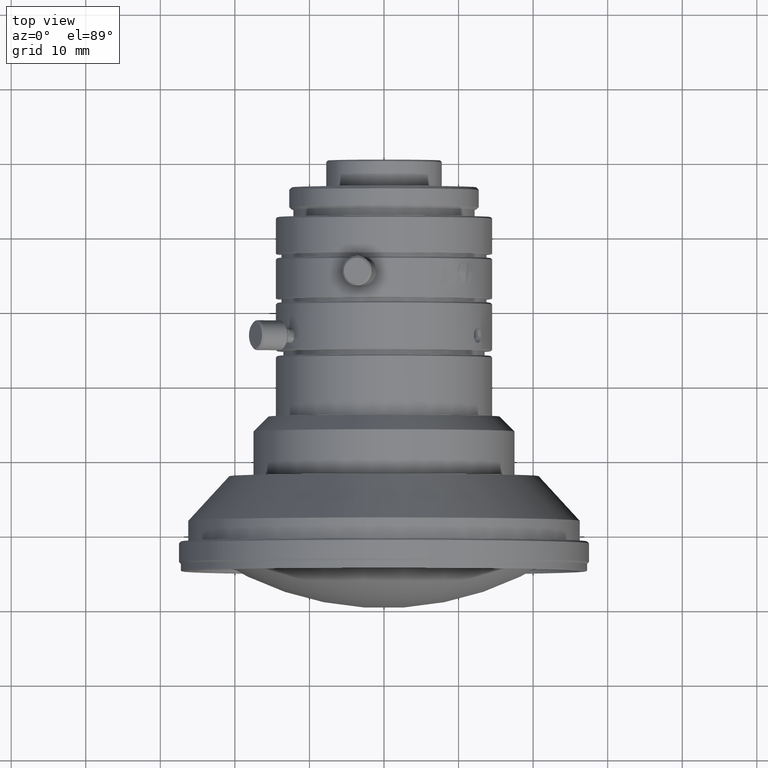
[diagram: clean part render]
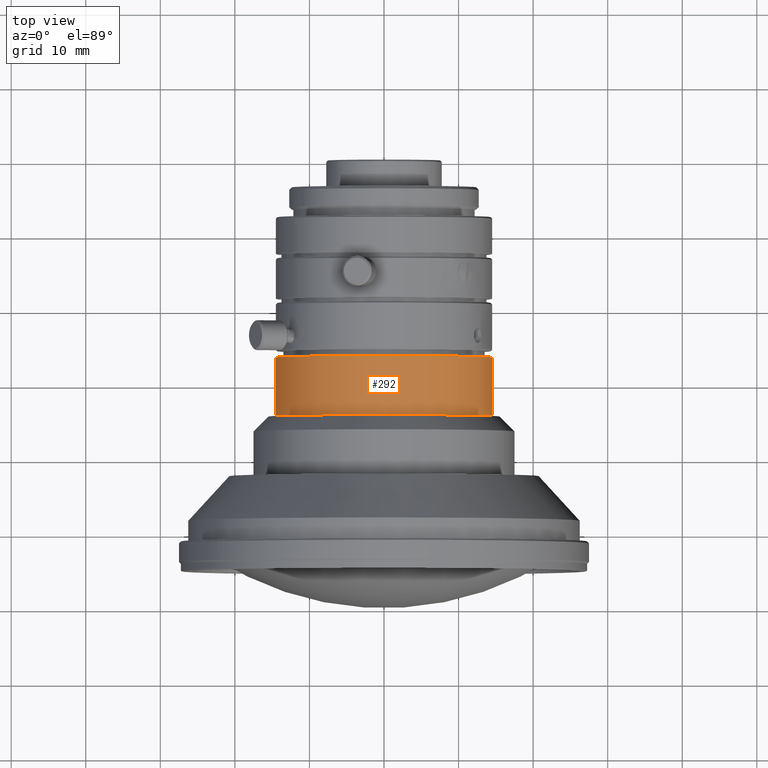
[diagram: same view with one face highlighted and labeled with its STEP entity id]
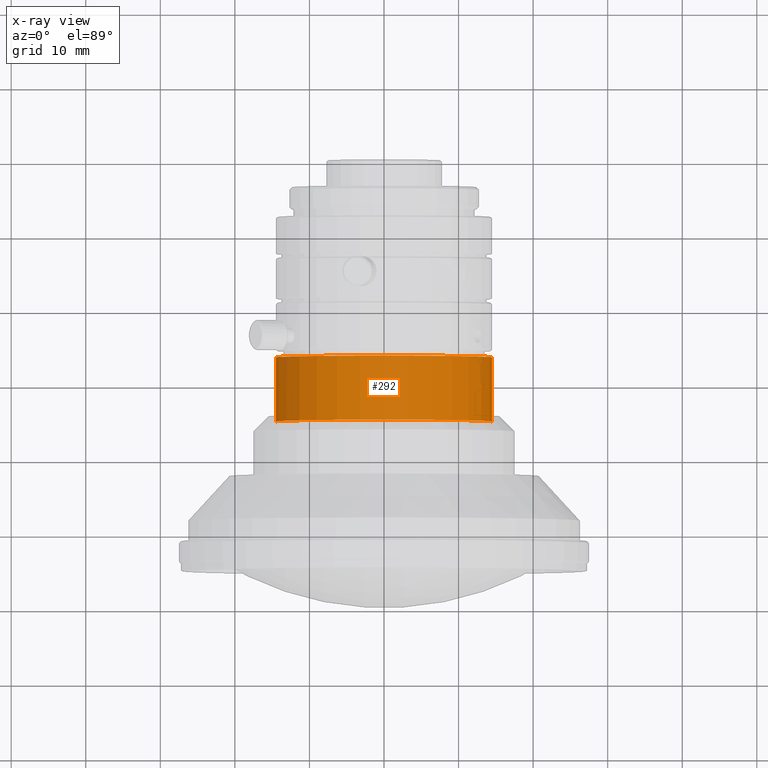
[diagram: x-ray of the same camera — body ghosted, the highlighted face saturated]
A machine part, top view. The second image highlights one B-rep face of the part: STEP entity #292.
The next image is the same camera in x-ray: the body ghosted, the highlighted face saturated — about 0% of this face is hidden behind the body in this view.
In plain terms, the highlighted cylindrical surface (partial cylindrical patch) has radius 14.5 mm, axis along (0, -1, 0).
Its self-contained STEP definition (entity closure, byte-faithful):
#292=ADVANCED_FACE('1:185',(#805),#806,.T.);
#805=FACE_OUTER_BOUND('',#1458,.T.);
#806=CYLINDRICAL_SURFACE('',#1459,0.0145);
#1458=EDGE_LOOP('',(#3072,#3073,#3074,#3075));
#1459=AXIS2_PLACEMENT_3D('',#3076,#3077,#3078);
#3072=ORIENTED_EDGE('',*,*,#4069,.T.);
#3073=ORIENTED_EDGE('',*,*,#4057,.T.);
#3074=ORIENTED_EDGE('',*,*,#4071,.T.);
#3075=ORIENTED_EDGE('',*,*,#4316,.F.);
#3076=CARTESIAN_POINT('',(0.0,-0.000700284329808462,0.0));
#3077=DIRECTION('',(3.26943875618435E-15,-1.0,0.0));
#3078=DIRECTION('',(1.0,3.26943875618435E-15,0.0));
#4057=EDGE_CURVE('1:233',#4932,#4936,#4938,.T.);
#4069=EDGE_CURVE('',#4958,#4932,#4959,.T.);
#4071=EDGE_CURVE('',#4936,#4960,#4962,.T.);
#4316=EDGE_CURVE('1:230',#4958,#4960,#5347,.T.);
#4932=VERTEX_POINT('NONE',#6528);
#4936=VERTEX_POINT('',#6533);
#4938=CIRCLE('',#6536,0.0145);
#4958=VERTEX_POINT('NONE',#6562);
#4959=LINE('',#6563,#6564);
#4960=VERTEX_POINT('',#6565);
#4962=LINE('',#6567,#6568);
#5347=CIRCLE('',#7107,0.0145);
#6528=CARTESIAN_POINT('',(0.0145,0.00359971567019158,0.0));
#6533=CARTESIAN_POINT('',(-0.0145,0.00359971567019149,1.77573785876366E-18));
#6536=AXIS2_PLACEMENT_3D('',#7884,#7885,#7886);
#6562=CARTESIAN_POINT('',(0.0145,-0.00500028432980841,0.0));
#6563=CARTESIAN_POINT('',(0.0145,-0.000700284329808415,-1.77573785876366E-18));
#6564=VECTOR('',#7908,1.0);
#6565=CARTESIAN_POINT('',(-0.0145,-0.00500028432980851,1.77573785876366E-18));
#6567=CARTESIAN_POINT('',(-0.0145,-0.000700284329808509,1.77573785876366E-18));
#6568=VECTOR('',#7912,1.0);
#7107=AXIS2_PLACEMENT_3D('',#8436,#8437,#8438);
#7884=CARTESIAN_POINT('',(-1.38777878078145E-17,0.00359971567019154,0.0));
#7885=DIRECTION('',(3.26943875618435E-15,-1.0,0.0));
#7886=DIRECTION('',(1.0,3.26943875618435E-15,0.0));
#7908=DIRECTION('',(-3.26943875618435E-15,1.0,-0.0));
#7912=DIRECTION('',(3.26943875618435E-15,-1.0,0.0));
#8436=CARTESIAN_POINT('',(1.38777878078145E-17,-0.00500028432980846,0.0));
#8437=DIRECTION('',(3.26943875618435E-15,-1.0,0.0));
#8438=DIRECTION('',(1.0,3.26943875618435E-15,0.0));